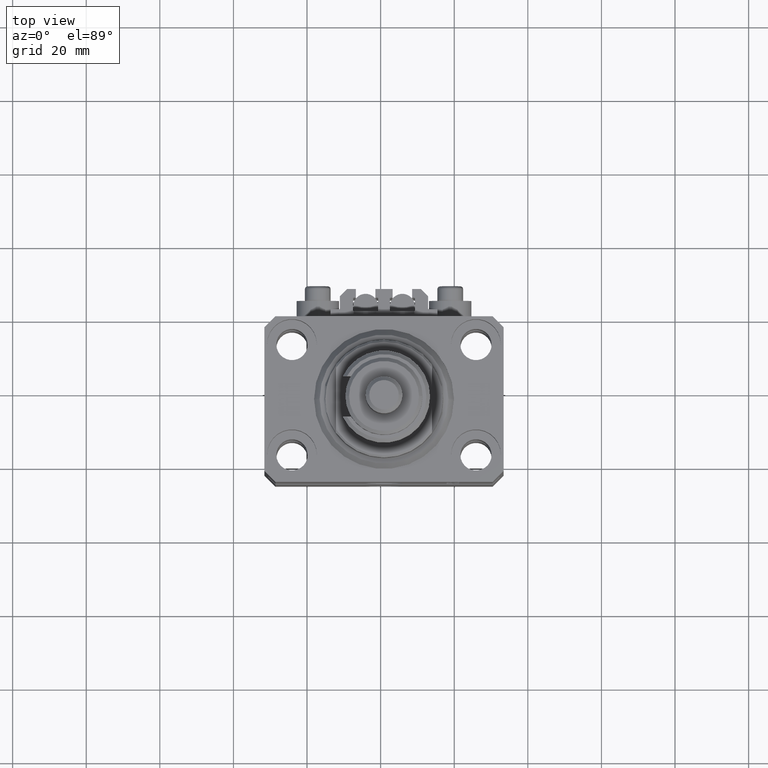
[diagram: clean part render]
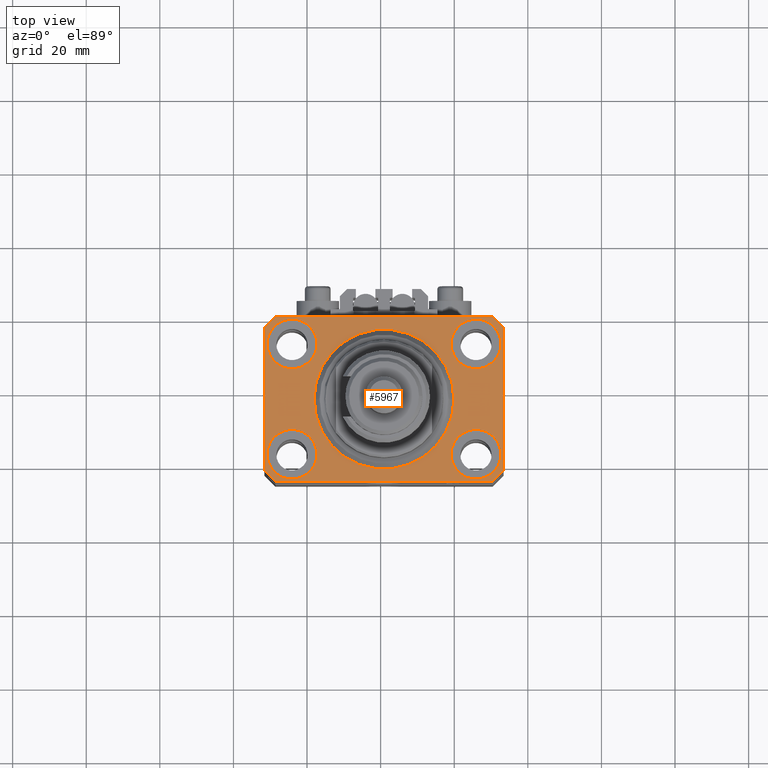
[diagram: same view with one face highlighted and labeled with its STEP entity id]
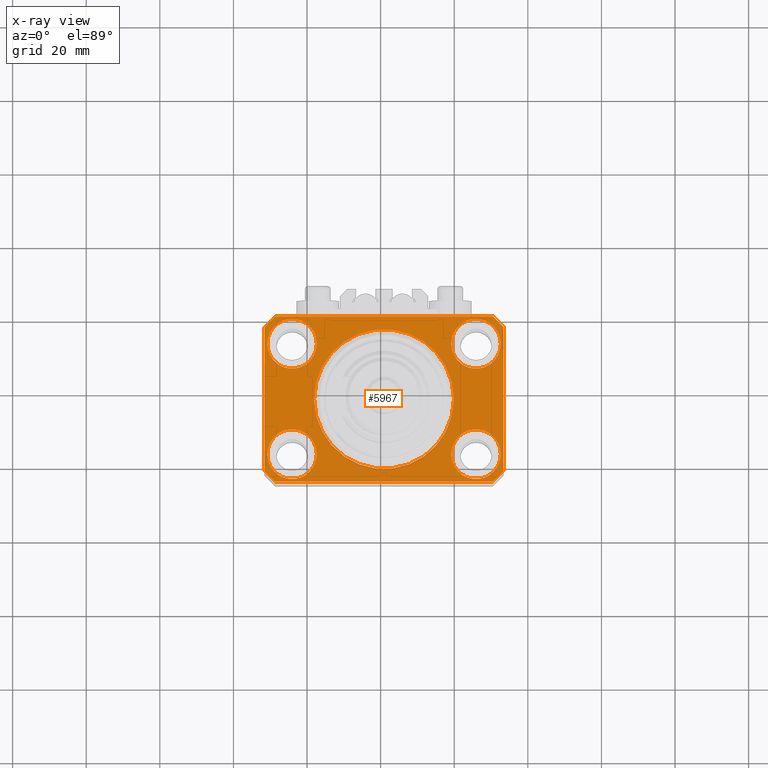
[diagram: x-ray of the same camera — body ghosted, the highlighted face saturated]
A machine part, top view. The second image highlights one B-rep face of the part: STEP entity #5967.
The next image is the same camera in x-ray: the body ghosted, the highlighted face saturated — about 0% of this face is hidden behind the body in this view.
In plain terms, the highlighted planar face has unit normal (0, 0, 1).
Its self-contained STEP definition (entity closure, byte-faithful):
#297 = ORIENTED_EDGE ( 'NONE', *, *, #9932, .T. ) ;
#399 = EDGE_LOOP ( 'NONE', ( #41456, #48799 ) ) ;
#452 = ORIENTED_EDGE ( 'NONE', *, *, #19266, .F. ) ;
#781 = VERTEX_POINT ( 'NONE', #39204 ) ;
#818 = CARTESIAN_POINT ( 'NONE',  ( -32.49999999999650413, -19.49999999999949907, 0.000000000000000000 ) ) ;
#892 = FACE_BOUND ( 'NONE', #30210, .T. ) ;
#1149 = EDGE_CURVE ( 'NONE', #14238, #49984, #48948, .T. ) ;
#1327 = CARTESIAN_POINT ( 'NONE',  ( -31.75000000004154899, -15.00000000000000000, 0.000000000000000000 ) ) ;
#1529 = CIRCLE ( 'NONE', #31077, 19.00000000000000000 ) ;
#1929 = CARTESIAN_POINT ( 'NONE',  ( 0.000000000000000000, 0.000000000000000000, 0.000000000000000000 ) ) ;
#2158 = VECTOR ( 'NONE', #25514, 1000.000000000000000 ) ;
#2606 = LINE ( 'NONE', #2858, #9338 ) ;
#2625 = VECTOR ( 'NONE', #47485, 1000.000000000000000 ) ;
#2858 = CARTESIAN_POINT ( 'NONE',  ( 32.49999999999651124, -19.49999999999949196, 0.000000000000000000 ) ) ;
#3149 = CARTESIAN_POINT ( 'NONE',  ( -29.49999999999650413, 22.49999999999949907, 0.000000000000000000 ) ) ;
#3273 = CARTESIAN_POINT ( 'NONE',  ( -32.49999999999650413, -19.49999999999949907, 0.000000000000000000 ) ) ;
#3723 = CARTESIAN_POINT ( 'NONE',  ( 29.49999999999707967, 22.49999999999951328, 0.000000000000000000 ) ) ;
#3833 = DIRECTION ( 'NONE',  ( 0.000000000000000000, 0.000000000000000000, 1.000000000000000000 ) ) ;
#4039 = CARTESIAN_POINT ( 'NONE',  ( 29.49999999999650413, -22.49999999999949196, 0.000000000000000000 ) ) ;
#4477 = EDGE_CURVE ( 'NONE', #43494, #12051, #9356, .T. ) ;
#4836 = ORIENTED_EDGE ( 'NONE', *, *, #17154, .T. ) ;
#5441 = VERTEX_POINT ( 'NONE', #7532 ) ;
#5749 = ORIENTED_EDGE ( 'NONE', *, *, #22976, .F. ) ;
#5769 = CIRCLE ( 'NONE', #18095, 19.00000000000000000 ) ;
#5967 = ADVANCED_FACE ( 'NONE', ( #36074, #8599, #892, #31461, #27608, #46894 ), #8852, .T. ) ;
#6420 = DIRECTION ( 'NONE',  ( 1.000000000000000000, 0.000000000000000000, 0.000000000000000000 ) ) ;
#6488 = CARTESIAN_POINT ( 'NONE',  ( -25.00000000000000355, 15.00000000000000000, 0.000000000000000000 ) ) ;
#6678 = DIRECTION ( 'NONE',  ( 1.000000000000000000, 0.000000000000000000, 0.000000000000000000 ) ) ;
#6765 = CARTESIAN_POINT ( 'NONE',  ( 25.00000000000000355, -15.00000000000000000, 0.000000000000000000 ) ) ;
#7358 = DIRECTION ( 'NONE',  ( 0.000000000000000000, 0.000000000000000000, 1.000000000000000000 ) ) ;
#7430 = DIRECTION ( 'NONE',  ( 0.000000000000000000, 0.000000000000000000, 1.000000000000000000 ) ) ;
#7532 = CARTESIAN_POINT ( 'NONE',  ( 31.74999999995845101, 15.00000000000000888, 0.000000000000000000 ) ) ;
#7678 = DIRECTION ( 'NONE',  ( 1.000000000000000000, 1.176083712526788232E-16, 0.000000000000000000 ) ) ;
#7972 = LINE ( 'NONE', #30810, #21095 ) ;
#8134 = EDGE_CURVE ( 'NONE', #49984, #14238, #35965, .T. ) ;
#8166 = EDGE_CURVE ( 'NONE', #15474, #12113, #34645, .T. ) ;
#8599 = FACE_BOUND ( 'NONE', #18744, .T. ) ;
#8852 = PLANE ( 'NONE',  #39167 ) ;
#9166 = VERTEX_POINT ( 'NONE', #27643 ) ;
#9338 = VECTOR ( 'NONE', #10824, 1000.000000000000000 ) ;
#9356 = LINE ( 'NONE', #33483, #2158 ) ;
#9537 = CARTESIAN_POINT ( 'NONE',  ( 18.25000000004154543, 15.00000000000000888, 0.000000000000000000 ) ) ;
#9723 = AXIS2_PLACEMENT_3D ( 'NONE', #27437, #7430, #46214 ) ;
#9823 = VERTEX_POINT ( 'NONE', #38593 ) ;
#9857 = DIRECTION ( 'NONE',  ( 1.000000000000000000, 0.000000000000000000, 0.000000000000000000 ) ) ;
#9899 = VECTOR ( 'NONE', #47129, 1000.000000000000000 ) ;
#9926 = CIRCLE ( 'NONE', #20591, 6.750000000022533087 ) ;
#9932 = EDGE_CURVE ( 'NONE', #17783, #43494, #15221, .T. ) ;
#10268 = DIRECTION ( 'NONE',  ( 0.000000000000000000, 0.000000000000000000, 1.000000000000000000 ) ) ;
#10824 = DIRECTION ( 'NONE',  ( 1.334402673828349134E-14, 1.000000000000000000, 0.000000000000000000 ) ) ;
#12051 = VERTEX_POINT ( 'NONE', #3273 ) ;
#12113 = VERTEX_POINT ( 'NONE', #4039 ) ;
#12748 = VERTEX_POINT ( 'NONE', #18122 ) ;
#12786 = EDGE_CURVE ( 'NONE', #45937, #17783, #47634, .T. ) ;
#13303 = CARTESIAN_POINT ( 'NONE',  ( 32.49999999999651124, -19.49999999999949196, 0.000000000000000000 ) ) ;
#13371 = CARTESIAN_POINT ( 'NONE',  ( -25.00000000000000355, -15.00000000000000000, 0.000000000000000000 ) ) ;
#13611 = ORIENTED_EDGE ( 'NONE', *, *, #4477, .T. ) ;
#13905 = VECTOR ( 'NONE', #50145, 1000.000000000000114 ) ;
#14238 = VERTEX_POINT ( 'NONE', #40876 ) ;
#15221 = LINE ( 'NONE', #3149, #13905 ) ;
#15474 = VERTEX_POINT ( 'NONE', #42099 ) ;
#15826 = CARTESIAN_POINT ( 'NONE',  ( 24.99999999999999645, 15.00000000000000888, 0.000000000000000000 ) ) ;
#16496 = DIRECTION ( 'NONE',  ( 0.7071067811865474617, -0.7071067811865474617, 0.000000000000000000 ) ) ;
#17154 = EDGE_CURVE ( 'NONE', #12051, #15474, #36002, .T. ) ;
#17701 = CARTESIAN_POINT ( 'NONE',  ( 0.000000000000000000, 0.000000000000000000, 0.000000000000000000 ) ) ;
#17783 = VERTEX_POINT ( 'NONE', #30442 ) ;
#17889 = VERTEX_POINT ( 'NONE', #18890 ) ;
#18095 = AXIS2_PLACEMENT_3D ( 'NONE', #17701, #33372, #37999 ) ;
#18122 = CARTESIAN_POINT ( 'NONE',  ( 31.74999999997746869, -15.00000000000000000, 0.000000000000000000 ) ) ;
#18136 = EDGE_CURVE ( 'NONE', #9166, #12748, #21179, .T. ) ;
#18713 = VERTEX_POINT ( 'NONE', #39651 ) ;
#18744 = EDGE_LOOP ( 'NONE', ( #27626, #48909 ) ) ;
#18890 = CARTESIAN_POINT ( 'NONE',  ( -18.24999999997747224, 15.00000000000000000, 0.000000000000000000 ) ) ;
#19266 = EDGE_CURVE ( 'NONE', #44476, #5441, #49114, .T. ) ;
#19404 = AXIS2_PLACEMENT_3D ( 'NONE', #13371, #10268, #6420 ) ;
#19446 = EDGE_CURVE ( 'NONE', #40075, #9823, #1529, .T. ) ;
#20094 = CARTESIAN_POINT ( 'NONE',  ( -32.49999999999650413, 19.49999999999949907, 0.000000000000000000 ) ) ;
#20376 = AXIS2_PLACEMENT_3D ( 'NONE', #6765, #40932, #9857 ) ;
#20591 = AXIS2_PLACEMENT_3D ( 'NONE', #31811, #3833, #31047 ) ;
#20737 = ORIENTED_EDGE ( 'NONE', *, *, #33475, .T. ) ;
#21095 = VECTOR ( 'NONE', #23888, 1000.000000000000000 ) ;
#21105 = AXIS2_PLACEMENT_3D ( 'NONE', #15826, #7358, #27371 ) ;
#21179 = CIRCLE ( 'NONE', #20376, 6.749999999977465137 ) ;
#21422 = EDGE_LOOP ( 'NONE', ( #29524, #297, #13611, #4836, #43143, #37414, #20737, #33631 ) ) ;
#21724 = ORIENTED_EDGE ( 'NONE', *, *, #1149, .F. ) ;
#22408 = DIRECTION ( 'NONE',  ( 1.000000000000000000, 0.000000000000000000, 0.000000000000000000 ) ) ;
#22444 = EDGE_LOOP ( 'NONE', ( #47413, #5749 ) ) ;
#22976 = EDGE_CURVE ( 'NONE', #9823, #40075, #5769, .T. ) ;
#23091 = EDGE_LOOP ( 'NONE', ( #21724, #36743 ) ) ;
#23482 = EDGE_CURVE ( 'NONE', #12748, #9166, #38603, .T. ) ;
#23888 = DIRECTION ( 'NONE',  ( 0.7071067811865483499, 0.7071067811865466846, 0.000000000000000000 ) ) ;
#24142 = EDGE_CURVE ( 'NONE', #18713, #17889, #9926, .T. ) ;
#24517 = CARTESIAN_POINT ( 'NONE',  ( 0.000000000000000000, 0.000000000000000000, 0.000000000000000000 ) ) ;
#24728 = CARTESIAN_POINT ( 'NONE',  ( 25.00000000000000355, -15.00000000000000000, 0.000000000000000000 ) ) ;
#25488 = DIRECTION ( 'NONE',  ( 0.000000000000000000, 0.000000000000000000, 1.000000000000000000 ) ) ;
#25514 = DIRECTION ( 'NONE',  ( 0.000000000000000000, -1.000000000000000000, 0.000000000000000000 ) ) ;
#26188 = CARTESIAN_POINT ( 'NONE',  ( 24.99999999999999645, 15.00000000000000888, 0.000000000000000000 ) ) ;
#26387 = EDGE_CURVE ( 'NONE', #781, #45937, #36421, .T. ) ;
#26537 = VERTEX_POINT ( 'NONE', #13303 ) ;
#27371 = DIRECTION ( 'NONE',  ( 1.000000000000000000, 0.000000000000000000, 0.000000000000000000 ) ) ;
#27437 = CARTESIAN_POINT ( 'NONE',  ( -25.00000000000000355, -15.00000000000000000, 0.000000000000000000 ) ) ;
#27565 = EDGE_CURVE ( 'NONE', #17889, #18713, #47803, .T. ) ;
#27608 = FACE_BOUND ( 'NONE', #22444, .T. ) ;
#27626 = ORIENTED_EDGE ( 'NONE', *, *, #23482, .F. ) ;
#27643 = CARTESIAN_POINT ( 'NONE',  ( 18.25000000002253842, -15.00000000000000000, 0.000000000000000000 ) ) ;
#28111 = DIRECTION ( 'NONE',  ( 0.000000000000000000, 0.000000000000000000, 1.000000000000000000 ) ) ;
#29064 = DIRECTION ( 'NONE',  ( 1.000000000000000000, 0.000000000000000000, 0.000000000000000000 ) ) ;
#29396 = DIRECTION ( 'NONE',  ( 0.000000000000000000, 0.000000000000000000, 1.000000000000000000 ) ) ;
#29524 = ORIENTED_EDGE ( 'NONE', *, *, #12786, .T. ) ;
#30210 = EDGE_LOOP ( 'NONE', ( #33282, #452 ) ) ;
#30442 = CARTESIAN_POINT ( 'NONE',  ( -29.49999999999650413, 22.49999999999949907, 0.000000000000000000 ) ) ;
#30810 = CARTESIAN_POINT ( 'NONE',  ( 29.49999999999650413, -22.49999999999949196, 0.000000000000000000 ) ) ;
#31047 = DIRECTION ( 'NONE',  ( 1.000000000000000000, 0.000000000000000000, 0.000000000000000000 ) ) ;
#31077 = AXIS2_PLACEMENT_3D ( 'NONE', #1929, #29396, #33770 ) ;
#31461 = FACE_BOUND ( 'NONE', #399, .T. ) ;
#31780 = CARTESIAN_POINT ( 'NONE',  ( 29.49999999999707967, 22.49999999999951328, 0.000000000000000000 ) ) ;
#31811 = CARTESIAN_POINT ( 'NONE',  ( -25.00000000000000355, 15.00000000000000000, 0.000000000000000000 ) ) ;
#33282 = ORIENTED_EDGE ( 'NONE', *, *, #50109, .F. ) ;
#33372 = DIRECTION ( 'NONE',  ( 0.000000000000000000, 0.000000000000000000, 1.000000000000000000 ) ) ;
#33475 = EDGE_CURVE ( 'NONE', #26537, #781, #2606, .T. ) ;
#33483 = CARTESIAN_POINT ( 'NONE',  ( -32.49999999999650413, 19.49999999999949907, 0.000000000000000000 ) ) ;
#33631 = ORIENTED_EDGE ( 'NONE', *, *, #26387, .T. ) ;
#33770 = DIRECTION ( 'NONE',  ( 1.000000000000000000, 0.000000000000000000, 0.000000000000000000 ) ) ;
#34645 = LINE ( 'NONE', #42873, #37580 ) ;
#35965 = CIRCLE ( 'NONE', #9723, 6.750000000041541881 ) ;
#36001 = AXIS2_PLACEMENT_3D ( 'NONE', #26188, #41867, #6678 ) ;
#36002 = LINE ( 'NONE', #818, #42847 ) ;
#36074 = FACE_BOUND ( 'NONE', #23091, .T. ) ;
#36421 = LINE ( 'NONE', #48243, #2625 ) ;
#36743 = ORIENTED_EDGE ( 'NONE', *, *, #8134, .F. ) ;
#37414 = ORIENTED_EDGE ( 'NONE', *, *, #41301, .T. ) ;
#37580 = VECTOR ( 'NONE', #7678, 1000.000000000000000 ) ;
#37999 = DIRECTION ( 'NONE',  ( 1.000000000000000000, 0.000000000000000000, 0.000000000000000000 ) ) ;
#38593 = CARTESIAN_POINT ( 'NONE',  ( -19.00000000000000000, 2.326828918379970970E-15, 0.000000000000000000 ) ) ;
#38603 = CIRCLE ( 'NONE', #40247, 6.749999999977465137 ) ;
#39167 = AXIS2_PLACEMENT_3D ( 'NONE', #24517, #28111, #43290 ) ;
#39204 = CARTESIAN_POINT ( 'NONE',  ( 32.49999999999702993, 19.49999999999945999, 0.000000000000000000 ) ) ;
#39651 = CARTESIAN_POINT ( 'NONE',  ( -31.75000000002253842, 15.00000000000000000, 0.000000000000000000 ) ) ;
#40075 = VERTEX_POINT ( 'NONE', #43632 ) ;
#40247 = AXIS2_PLACEMENT_3D ( 'NONE', #24728, #49110, #29064 ) ;
#40876 = CARTESIAN_POINT ( 'NONE',  ( -18.24999999995846167, -15.00000000000000000, 0.000000000000000000 ) ) ;
#40932 = DIRECTION ( 'NONE',  ( 0.000000000000000000, 0.000000000000000000, 1.000000000000000000 ) ) ;
#41301 = EDGE_CURVE ( 'NONE', #12113, #26537, #7972, .T. ) ;
#41456 = ORIENTED_EDGE ( 'NONE', *, *, #27565, .F. ) ;
#41867 = DIRECTION ( 'NONE',  ( 0.000000000000000000, 0.000000000000000000, 1.000000000000000000 ) ) ;
#42099 = CARTESIAN_POINT ( 'NONE',  ( -29.49999999999650413, -22.49999999999949907, 0.000000000000000000 ) ) ;
#42847 = VECTOR ( 'NONE', #16496, 1000.000000000000114 ) ;
#42873 = CARTESIAN_POINT ( 'NONE',  ( -29.49999999999650413, -22.49999999999949907, 0.000000000000000000 ) ) ;
#43143 = ORIENTED_EDGE ( 'NONE', *, *, #8166, .T. ) ;
#43290 = DIRECTION ( 'NONE',  ( 1.000000000000000000, 0.000000000000000000, -0.000000000000000000 ) ) ;
#43494 = VERTEX_POINT ( 'NONE', #20094 ) ;
#43632 = CARTESIAN_POINT ( 'NONE',  ( 19.00000000000000000, 0.000000000000000000, 0.000000000000000000 ) ) ;
#44476 = VERTEX_POINT ( 'NONE', #9537 ) ;
#45937 = VERTEX_POINT ( 'NONE', #31780 ) ;
#46214 = DIRECTION ( 'NONE',  ( 1.000000000000000000, 0.000000000000000000, 0.000000000000000000 ) ) ;
#46894 = FACE_OUTER_BOUND ( 'NONE', #21422, .T. ) ;
#47129 = DIRECTION ( 'NONE',  ( -1.000000000000000000, -2.352167425053553784E-16, 0.000000000000000000 ) ) ;
#47413 = ORIENTED_EDGE ( 'NONE', *, *, #19446, .F. ) ;
#47485 = DIRECTION ( 'NONE',  ( -0.7071067811865352493, 0.7071067811865597852, 0.000000000000000000 ) ) ;
#47634 = LINE ( 'NONE', #3723, #9899 ) ;
#47803 = CIRCLE ( 'NONE', #49442, 6.750000000022533087 ) ;
#48243 = CARTESIAN_POINT ( 'NONE',  ( 32.49999999999702993, 19.49999999999945999, 0.000000000000000000 ) ) ;
#48799 = ORIENTED_EDGE ( 'NONE', *, *, #24142, .F. ) ;
#48909 = ORIENTED_EDGE ( 'NONE', *, *, #18136, .F. ) ;
#48948 = CIRCLE ( 'NONE', #19404, 6.750000000041541881 ) ;
#49110 = DIRECTION ( 'NONE',  ( 0.000000000000000000, 0.000000000000000000, 1.000000000000000000 ) ) ;
#49114 = CIRCLE ( 'NONE', #36001, 6.749999999958452790 ) ;
#49442 = AXIS2_PLACEMENT_3D ( 'NONE', #6488, #25488, #22408 ) ;
#49984 = VERTEX_POINT ( 'NONE', #1327 ) ;
#50109 = EDGE_CURVE ( 'NONE', #5441, #44476, #50672, .T. ) ;
#50145 = DIRECTION ( 'NONE',  ( -0.7071067811865474617, -0.7071067811865474617, 0.000000000000000000 ) ) ;
#50672 = CIRCLE ( 'NONE', #21105, 6.749999999958452790 ) ;